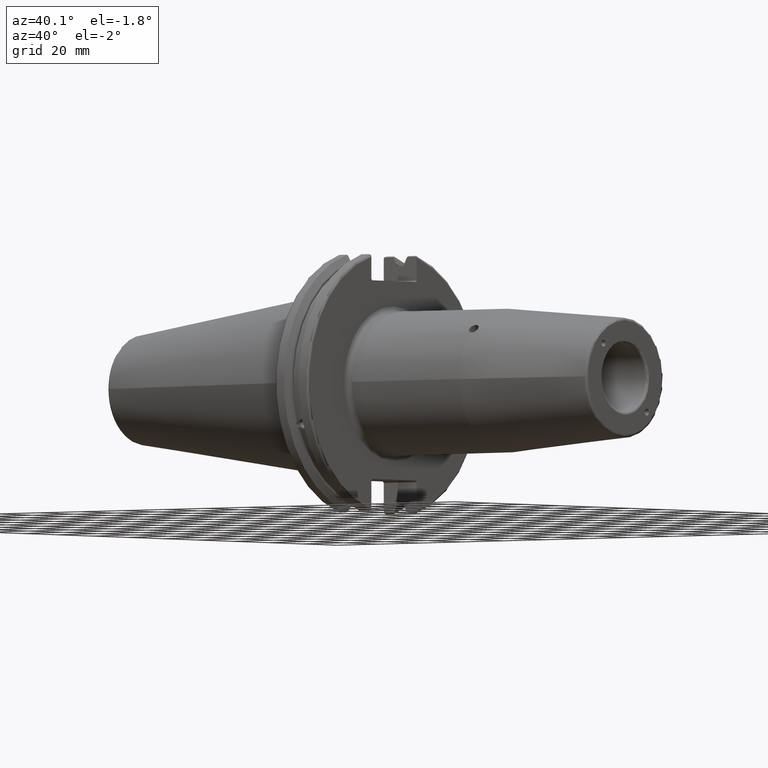
[diagram: clean part render]
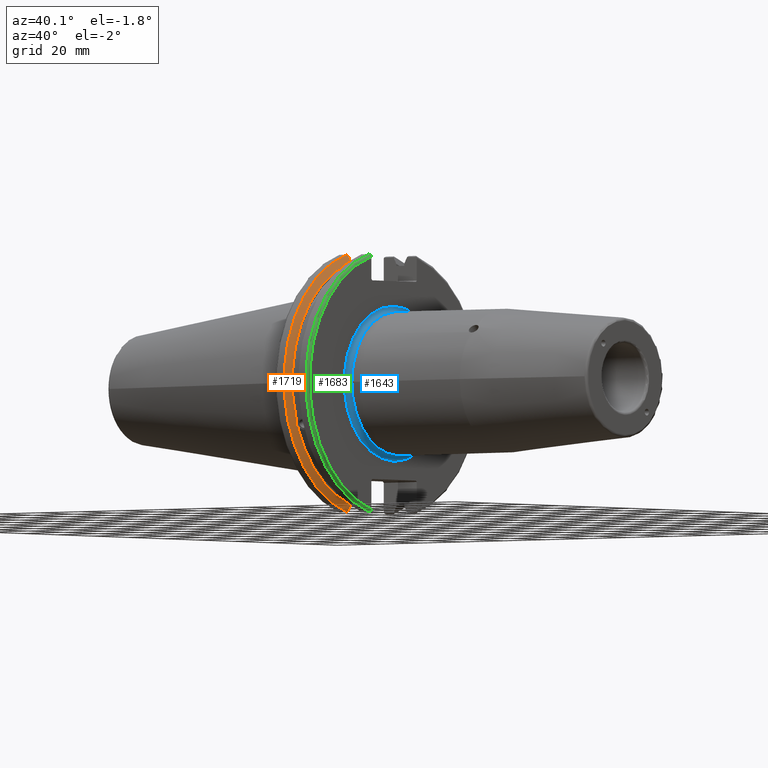
[diagram: same view with three faces highlighted in distinct colors, each labeled with its STEP entity id]
A machine part, auxiliary view with three faces highlighted in distinct colors.
Their STEP definitions:

[orange] entity #1719 — the highlighted conical surface has half-angle 60 deg.
#25=(
BOUNDED_CURVE()
B_SPLINE_CURVE(2,(#3395,#3396,#3397),.UNSPECIFIED.,.F.,.F.)
B_SPLINE_CURVE_WITH_KNOTS((3,3),(0.,0.275823910674601),.UNSPECIFIED.)
CURVE()
GEOMETRIC_REPRESENTATION_ITEM()
RATIONAL_B_SPLINE_CURVE((1.,1.00038235573593,1.00012873636487))
REPRESENTATION_ITEM('')
);
#26=(
BOUNDED_CURVE()
B_SPLINE_CURVE(2,(#3407,#3408,#3409),.UNSPECIFIED.,.F.,.F.)
B_SPLINE_CURVE_WITH_KNOTS((3,3),(0.0558332664507492,0.331657177124507),
 .UNSPECIFIED.)
CURVE()
GEOMETRIC_REPRESENTATION_ITEM()
RATIONAL_B_SPLINE_CURVE((1.00012873636807,1.00038235574544,1.))
REPRESENTATION_ITEM('')
);
#27=(
BOUNDED_CURVE()
B_SPLINE_CURVE(2,(#3442,#3443,#3444),.UNSPECIFIED.,.F.,.F.)
B_SPLINE_CURVE_WITH_KNOTS((3,3),(0.,0.0648240472897372),.UNSPECIFIED.)
CURVE()
GEOMETRIC_REPRESENTATION_ITEM()
RATIONAL_B_SPLINE_CURVE((1.,1.00011477674836,1.00019140645948))
REPRESENTATION_ITEM('')
);
#28=(
BOUNDED_CURVE()
B_SPLINE_CURVE(2,(#3450,#3451,#3452),.UNSPECIFIED.,.F.,.F.)
B_SPLINE_CURVE_WITH_KNOTS((3,3),(0.325260944932348,0.390084992222201),
 .UNSPECIFIED.)
CURVE()
GEOMETRIC_REPRESENTATION_ITEM()
RATIONAL_B_SPLINE_CURVE((1.00019140645916,1.00011477674817,1.))
REPRESENTATION_ITEM('')
);
#115=CONICAL_SURFACE('',#1916,47.8172386482472,1.0471975511966);
#153=CIRCLE('',#1819,46.4219772964944);
#177=CIRCLE('',#1870,49.2125);
#193=CIRCLE('',#1917,46.4219772964944);
#285=FACE_OUTER_BOUND('',#402,.T.);
#402=EDGE_LOOP('',(#1578,#1579,#1580,#1581,#1582,#1583,#1584,#1585));
#431=B_SPLINE_CURVE_WITH_KNOTS('',3,(#2931,#2932,#2933,#2934,#2935,#2936,
#2937,#2938,#2939,#2940,#2941,#2942,#2943,#2944),.UNSPECIFIED.,.F.,.F.,
(4,2,2,2,2,2,4),(0.426712868358719,0.441644498666906,0.48031331322313,0.518982127779354,
0.557650942335578,0.596319756891801,0.611251387199988),.UNSPECIFIED.);
#730=VERTEX_POINT('',#2928);
#731=VERTEX_POINT('',#2930);
#748=VERTEX_POINT('',#3021);
#808=VERTEX_POINT('',#3392);
#809=VERTEX_POINT('',#3394);
#812=VERTEX_POINT('',#3406);
#816=VERTEX_POINT('',#3440);
#817=VERTEX_POINT('',#3446);
#923=EDGE_CURVE('',#731,#730,#431,.T.);
#946=EDGE_CURVE('',#731,#748,#153,.T.);
#1028=EDGE_CURVE('',#809,#808,#25,.T.);
#1034=EDGE_CURVE('',#812,#748,#26,.T.);
#1042=EDGE_CURVE('',#816,#808,#27,.T.);
#1044=EDGE_CURVE('',#816,#817,#177,.T.);
#1045=EDGE_CURVE('',#812,#817,#28,.T.);
#1087=EDGE_CURVE('',#809,#730,#193,.T.);
#1578=ORIENTED_EDGE('',*,*,#923,.T.);
#1579=ORIENTED_EDGE('',*,*,#1087,.F.);
#1580=ORIENTED_EDGE('',*,*,#1028,.T.);
#1581=ORIENTED_EDGE('',*,*,#1042,.F.);
#1582=ORIENTED_EDGE('',*,*,#1044,.T.);
#1583=ORIENTED_EDGE('',*,*,#1045,.F.);
#1584=ORIENTED_EDGE('',*,*,#1034,.T.);
#1585=ORIENTED_EDGE('',*,*,#946,.F.);
#1719=ADVANCED_FACE('',(#285),#115,.T.);
#1819=AXIS2_PLACEMENT_3D('',#3022,#2109,#2110);
#1870=AXIS2_PLACEMENT_3D('',#3448,#2253,#2254);
#1916=AXIS2_PLACEMENT_3D('',#3564,#2366,#2367);
#1917=AXIS2_PLACEMENT_3D('',#3565,#2368,#2369);
#2109=DIRECTION('center_axis',(1.,0.,0.));
#2110=DIRECTION('ref_axis',(0.,0.,-1.));
#2253=DIRECTION('center_axis',(1.,0.,0.));
#2254=DIRECTION('ref_axis',(0.,0.,-1.));
#2366=DIRECTION('center_axis',(-1.,0.,0.));
#2367=DIRECTION('ref_axis',(0.,-1.,-1.22464679914735E-16));
#2368=DIRECTION('center_axis',(1.,0.,0.));
#2369=DIRECTION('ref_axis',(0.,0.,-1.));
#2928=CARTESIAN_POINT('',(9.2191,-43.9096390749305,-15.0646464421033));
#2930=CARTESIAN_POINT('',(9.2191,-43.3201030900029,-16.684383248648));
#2931=CARTESIAN_POINT('Ctrl Pts',(9.21910000000001,-43.3201030900029,-16.6843832486479));
#2932=CARTESIAN_POINT('Ctrl Pts',(9.20211843903392,-43.3613106941341,-16.6592273018006));
#2933=CARTESIAN_POINT('Ctrl Pts',(9.18608675403322,-43.4012416983557,-16.6326763251437));
#2934=CARTESIAN_POINT('Ctrl Pts',(9.13238673845037,-43.5391037343221,-16.5325130832406));
#2935=CARTESIAN_POINT('Ctrl Pts',(9.09621610663556,-43.6406982153491,-16.441180795372));
#2936=CARTESIAN_POINT('Ctrl Pts',(9.04690868251975,-43.8110833825827,-16.2291323464527));
#2937=CARTESIAN_POINT('Ctrl Pts',(9.0341,-43.8794096049168,-16.10796730316));
#2938=CARTESIAN_POINT('Ctrl Pts',(9.0341,-43.9675796948952,-15.8657219718732));
#2939=CARTESIAN_POINT('Ctrl Pts',(9.04690868251975,-43.9931221605126,-15.7289849146254));
#2940=CARTESIAN_POINT('Ctrl Pts',(9.09621610663556,-43.9989016655819,-15.4570249042867));
#2941=CARTESIAN_POINT('Ctrl Pts',(9.13238673845037,-43.9797830409458,-15.3217566390708));
#2942=CARTESIAN_POINT('Ctrl Pts',(9.18608675403322,-43.9385582852181,-15.1564111356409));
#2943=CARTESIAN_POINT('Ctrl Pts',(9.20211843903392,-43.9250360001461,-15.1104047527575));
#2944=CARTESIAN_POINT('Ctrl Pts',(9.2191,-43.9096390749305,-15.0646464421033));
#3021=CARTESIAN_POINT('',(9.2191,-12.95,-44.5791147973604));
#3022=CARTESIAN_POINT('Origin',(9.2191,0.,0.));
#3392=CARTESIAN_POINT('',(7.88638960562424,-12.95,46.9780755322918));
#3394=CARTESIAN_POINT('',(9.2191,-12.95,44.5791147973604));
#3395=CARTESIAN_POINT('Ctrl Pts',(9.2191,-12.95,44.5791147973604));
#3396=CARTESIAN_POINT('Ctrl Pts',(8.57020449055857,-12.95,45.7494966802148));
#3397=CARTESIAN_POINT('Ctrl Pts',(7.88638960562424,-12.95,46.9780755322918));
#3406=CARTESIAN_POINT('',(7.88638960562425,-12.95,-46.9780755322918));
#3407=CARTESIAN_POINT('Ctrl Pts',(7.88638960562425,-12.95,-46.9780755322918));
#3408=CARTESIAN_POINT('Ctrl Pts',(8.57020449054166,-12.95,-45.7494966802452));
#3409=CARTESIAN_POINT('Ctrl Pts',(9.2191,-12.95,-44.5791147973604));
#3440=CARTESIAN_POINT('',(7.60799096595127,-13.4317035994433,47.3440544806494));
#3442=CARTESIAN_POINT('Ctrl Pts',(7.60799096595126,-13.4317035994433,47.3440544806494));
#3443=CARTESIAN_POINT('Ctrl Pts',(7.7482689666382,-13.1896660169966,47.1601640966265));
#3444=CARTESIAN_POINT('Ctrl Pts',(7.88638960562424,-12.95,46.9780755322918));
#3446=CARTESIAN_POINT('',(7.60799096595127,-13.4317035994433,-47.3440544806494));
#3448=CARTESIAN_POINT('Origin',(7.60799096595127,0.,0.));
#3450=CARTESIAN_POINT('Ctrl Pts',(7.88638960562425,-12.95,-46.9780755322918));
#3451=CARTESIAN_POINT('Ctrl Pts',(7.74826896663813,-13.1896660169967,-47.1601640966265));
#3452=CARTESIAN_POINT('Ctrl Pts',(7.60799096595127,-13.4317035994434,-47.3440544806494));
#3564=CARTESIAN_POINT('Origin',(8.41354548297563,0.,0.));
#3565=CARTESIAN_POINT('Origin',(9.2191,0.,0.));

[blue] entity #1643 — the highlighted toroidal blend (fillet) surface has major radius 28.5 mm and minor (blend) radius 2 mm.
#94=TOROIDAL_SURFACE('',#1777,28.5,2.);
#120=CIRCLE('',#1760,26.5);
#121=CIRCLE('',#1761,26.5);
#132=CIRCLE('',#1778,2.);
#133=CIRCLE('',#1779,28.5);
#209=FACE_OUTER_BOUND('',#305,.T.);
#305=EDGE_LOOP('',(#1173,#1174,#1175,#1176,#1177));
#687=VERTEX_POINT('',#2641);
#688=VERTEX_POINT('',#2643);
#696=VERTEX_POINT('',#2671);
#867=EDGE_CURVE('',#688,#687,#120,.T.);
#868=EDGE_CURVE('',#687,#688,#121,.T.);
#881=EDGE_CURVE('',#688,#696,#132,.T.);
#882=EDGE_CURVE('',#696,#696,#133,.T.);
#1173=ORIENTED_EDGE('',*,*,#868,.T.);
#1174=ORIENTED_EDGE('',*,*,#881,.T.);
#1175=ORIENTED_EDGE('',*,*,#882,.T.);
#1176=ORIENTED_EDGE('',*,*,#881,.F.);
#1177=ORIENTED_EDGE('',*,*,#867,.T.);
#1643=ADVANCED_FACE('',(#209),#94,.F.);
#1760=AXIS2_PLACEMENT_3D('',#2644,#1963,#1964);
#1761=AXIS2_PLACEMENT_3D('',#2645,#1965,#1966);
#1777=AXIS2_PLACEMENT_3D('',#2670,#1999,#2000);
#1778=AXIS2_PLACEMENT_3D('',#2672,#2001,#2002);
#1779=AXIS2_PLACEMENT_3D('',#2673,#2003,#2004);
#1963=DIRECTION('center_axis',(-1.,0.,0.));
#1964=DIRECTION('ref_axis',(0.,-1.,-1.22464679914735E-16));
#1965=DIRECTION('center_axis',(-1.,0.,0.));
#1966=DIRECTION('ref_axis',(0.,-1.,-1.22464679914735E-16));
#1999=DIRECTION('center_axis',(-1.,0.,0.));
#2000=DIRECTION('ref_axis',(0.,0.,1.));
#2001=DIRECTION('center_axis',(0.,-1.,1.22464679914735E-16));
#2002=DIRECTION('ref_axis',(0.,-1.22464679914735E-16,-1.));
#2003=DIRECTION('center_axis',(1.,0.,0.));
#2004=DIRECTION('ref_axis',(0.,-1.,-1.22464679914735E-16));
#2641=CARTESIAN_POINT('',(21.05,-26.5,-3.24531401774049E-15));
#2643=CARTESIAN_POINT('',(21.05,-3.24531401774049E-15,-26.5));
#2644=CARTESIAN_POINT('Origin',(21.05,0.,0.));
#2645=CARTESIAN_POINT('Origin',(21.05,0.,0.));
#2670=CARTESIAN_POINT('Origin',(21.05,0.,0.));
#2671=CARTESIAN_POINT('',(19.05,-3.49024337756996E-15,-28.5));
#2672=CARTESIAN_POINT('Origin',(21.05,-3.49024337756996E-15,-28.5));
#2673=CARTESIAN_POINT('Origin',(19.05,0.,0.));

[green] entity #1683 — the highlighted toroidal blend (fillet) surface has major radius 48.2125 mm and minor (blend) radius 1 mm.
#97=TOROIDAL_SURFACE('',#1862,48.2125,1.);
#135=CIRCLE('',#1782,48.2125);
#175=CIRCLE('',#1863,49.2125);
#249=FACE_OUTER_BOUND('',#363,.T.);
#363=EDGE_LOOP('',(#1401,#1402,#1403,#1404,#1405,#1406));
#448=B_SPLINE_CURVE_WITH_KNOTS('',3,(#3351,#3352,#3353,#3354,#3355,#3356),
 .UNSPECIFIED.,.F.,.F.,(4,2,4),(0.097707143645253,0.112358403262293,0.150882178076498),
 .UNSPECIFIED.);
#449=B_SPLINE_CURVE_WITH_KNOTS('',3,(#3358,#3359,#3360,#3361,#3362,#3363),
 .UNSPECIFIED.,.F.,.F.,(4,2,4),(0.452859694247731,0.491383469061936,0.506034728678978),
 .UNSPECIFIED.);
#450=B_SPLINE_CURVE_WITH_KNOTS('',3,(#3365,#3366,#3367,#3368,#3369,#3370,
#3371,#3372),.UNSPECIFIED.,.F.,.F.,(4,2,2,4),(-0.104075769062722,-0.0730268503455477,
-0.0343639873656263,0.),.UNSPECIFIED.);
#451=B_SPLINE_CURVE_WITH_KNOTS('',3,(#3375,#3376,#3377,#3378,#3379,#3380,
#3381,#3382),.UNSPECIFIED.,.F.,.F.,(4,2,2,4),(0.,0.0364336453281818,0.0778720357014993,
0.104197480645881),.UNSPECIFIED.);
#703=VERTEX_POINT('',#2686);
#704=VERTEX_POINT('',#2688);
#803=VERTEX_POINT('',#3350);
#804=VERTEX_POINT('',#3357);
#805=VERTEX_POINT('',#3364);
#806=VERTEX_POINT('',#3373);
#889=EDGE_CURVE('',#704,#703,#135,.T.);
#1020=EDGE_CURVE('',#803,#704,#448,.T.);
#1021=EDGE_CURVE('',#703,#804,#449,.T.);
#1022=EDGE_CURVE('',#804,#805,#450,.T.);
#1023=EDGE_CURVE('',#805,#806,#175,.T.);
#1024=EDGE_CURVE('',#806,#803,#451,.T.);
#1401=ORIENTED_EDGE('',*,*,#1020,.T.);
#1402=ORIENTED_EDGE('',*,*,#889,.T.);
#1403=ORIENTED_EDGE('',*,*,#1021,.T.);
#1404=ORIENTED_EDGE('',*,*,#1022,.T.);
#1405=ORIENTED_EDGE('',*,*,#1023,.T.);
#1406=ORIENTED_EDGE('',*,*,#1024,.T.);
#1683=ADVANCED_FACE('',(#249),#97,.T.);
#1782=AXIS2_PLACEMENT_3D('',#2689,#2014,#2015);
#1862=AXIS2_PLACEMENT_3D('',#3349,#2226,#2227);
#1863=AXIS2_PLACEMENT_3D('',#3374,#2228,#2229);
#2014=DIRECTION('center_axis',(-1.,0.,0.));
#2015=DIRECTION('ref_axis',(0.,-1.,1.60812264967664E-16));
#2226=DIRECTION('center_axis',(1.,0.,0.));
#2227=DIRECTION('ref_axis',(0.,0.,-1.));
#2228=DIRECTION('center_axis',(1.,0.,0.));
#2229=DIRECTION('ref_axis',(0.,-1.,1.60812264967664E-16));
#2686=CARTESIAN_POINT('',(19.05,-12.95,46.4407434937254));
#2688=CARTESIAN_POINT('',(19.05,-12.95,-46.4407434937254));
#2689=CARTESIAN_POINT('Origin',(19.05,0.,0.));
#3349=CARTESIAN_POINT('Origin',(18.05,0.,0.));
#3350=CARTESIAN_POINT('',(18.9055020570566,-12.95,-46.9780755322917));
#3351=CARTESIAN_POINT('Ctrl Pts',(18.9055020570566,-12.95,-46.9780755322917));
#3352=CARTESIAN_POINT('Ctrl Pts',(18.9322353702005,-12.95,-46.9322596399785));
#3353=CARTESIAN_POINT('Ctrl Pts',(18.9549831813775,-12.95,-46.8849952622217));
#3354=CARTESIAN_POINT('Ctrl Pts',(19.0209992543299,-12.95,-46.7204975987179));
#3355=CARTESIAN_POINT('Ctrl Pts',(19.05,-12.95,-46.5691560764394));
#3356=CARTESIAN_POINT('Ctrl Pts',(19.05,-12.95,-46.4407434937254));
#3357=CARTESIAN_POINT('',(18.9055020570566,-12.95,46.9780755322918));
#3358=CARTESIAN_POINT('Ctrl Pts',(19.05,-12.95,46.4407434937254));
#3359=CARTESIAN_POINT('Ctrl Pts',(19.05,-12.95,46.5691560764394));
#3360=CARTESIAN_POINT('Ctrl Pts',(19.0209992543299,-12.95,46.7204975987179));
#3361=CARTESIAN_POINT('Ctrl Pts',(18.9549831813775,-12.95,46.8849952622217));
#3362=CARTESIAN_POINT('Ctrl Pts',(18.9322353702005,-12.95,46.9322596399785));
#3363=CARTESIAN_POINT('Ctrl Pts',(18.9055020570566,-12.95,46.9780755322918));
#3364=CARTESIAN_POINT('',(18.05,-13.4317035994433,47.3440544806494));
#3365=CARTESIAN_POINT('Ctrl Pts',(18.9055020570566,-12.95,46.9780755322918));
#3366=CARTESIAN_POINT('Ctrl Pts',(18.8571496772125,-13.0300321736484,47.0388807469102));
#3367=CARTESIAN_POINT('Ctrl Pts',(18.792640282015,-13.1083611826073,47.0983919657547));
#3368=CARTESIAN_POINT('Ctrl Pts',(18.6399248789208,-13.2478194810695,47.2043467509586));
#3369=CARTESIAN_POINT('Ctrl Pts',(18.5186188350904,-13.3242014686233,47.2623787015413));
#3370=CARTESIAN_POINT('Ctrl Pts',(18.2983889675417,-13.4067722493645,47.3251126473446));
#3371=CARTESIAN_POINT('Ctrl Pts',(18.1645466245521,-13.4317035994433,47.3440544806494));
#3372=CARTESIAN_POINT('Ctrl Pts',(18.05,-13.4317035994433,47.3440544806494));
#3373=CARTESIAN_POINT('',(18.05,-13.4317035994433,-47.3440544806494));
#3374=CARTESIAN_POINT('Origin',(18.05,0.,0.));
#3375=CARTESIAN_POINT('Ctrl Pts',(18.05,-13.4317035994433,-47.3440544806494));
#3376=CARTESIAN_POINT('Ctrl Pts',(18.1714454844273,-13.4317035994433,-47.3440544806494));
#3377=CARTESIAN_POINT('Ctrl Pts',(18.3128758164404,-13.4037095171132,-47.3227857070233));
#3378=CARTESIAN_POINT('Ctrl Pts',(18.54495745946,-13.3111366376071,-47.2524525703658));
#3379=CARTESIAN_POINT('Ctrl Pts',(18.6710431007969,-13.2254637570201,-47.1873617743322));
#3380=CARTESIAN_POINT('Ctrl Pts',(18.811782280389,-13.0847856162862,-47.0804802022157));
#3381=CARTESIAN_POINT('Ctrl Pts',(18.8641312352177,-13.0184763978125,-47.0301011349397));
#3382=CARTESIAN_POINT('Ctrl Pts',(18.9055020570566,-12.95,-46.9780755322917));